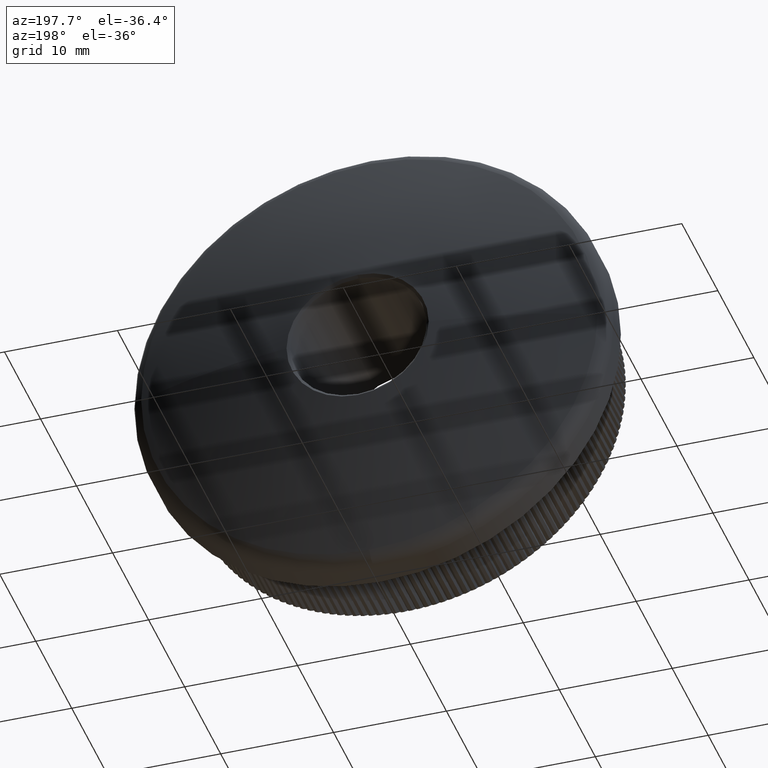
[diagram: clean part render]
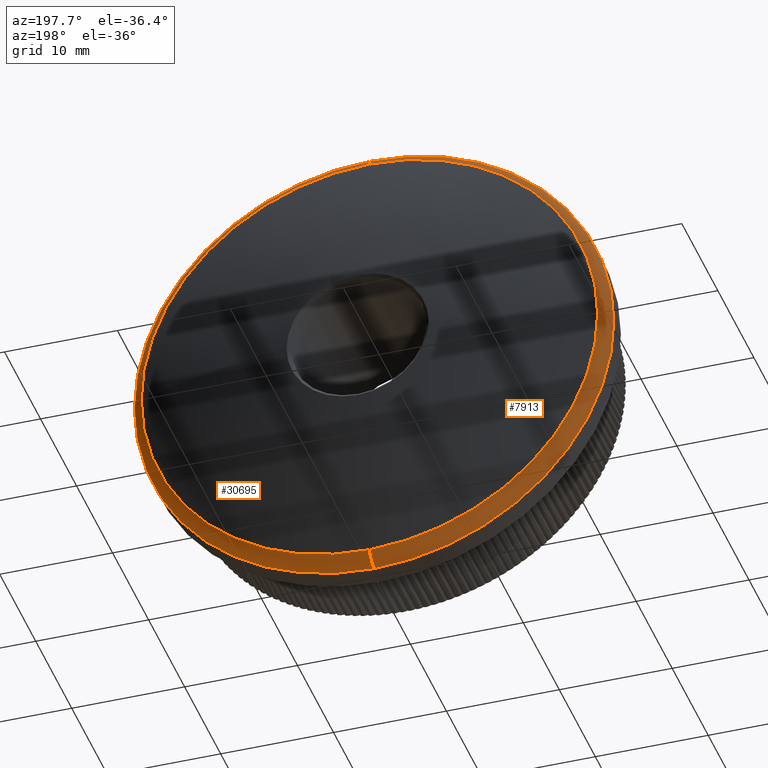
[diagram: same view with one multi-face feature highlighted, each face labeled with its STEP entity id]
A machine part, auxiliary view. The highlighted faces form ONE feature: a constant-radius fillet chain: 2 tangent blend faces with common blend radius 1.5 mm. The faces share edges in the B-rep.
Their STEP definitions:
[1] entity #7913 (Torus):
#6 = DIRECTION ( 'NONE',  ( 1.000000000000000000, 0.0000000000000000000, -1.224646799147353500E-016 ) ) ;
#136 = DIRECTION ( 'NONE',  ( -0.0000000000000000000, -1.000000000000000000, -0.0000000000000000000 ) ) ;
#665 = ORIENTED_EDGE ( 'NONE', *, *, #27645, .F. ) ;
#1501 = CIRCLE ( 'NONE', #29746, 1.500000000000001300 ) ;
#2232 = DIRECTION ( 'NONE',  ( 0.0000000000000000000, 1.000000000000000000, 0.0000000000000000000 ) ) ;
#2406 = VERTEX_POINT ( 'NONE', #12454 ) ;
#2564 = AXIS2_PLACEMENT_3D ( 'NONE', #7106, #2232, #31623 ) ;
#3249 = TOROIDAL_SURFACE ( 'NONE', #18318, 19.70000000000000300, 1.500000000000000000 ) ;
#3378 = VERTEX_POINT ( 'NONE', #6986 ) ;
#4003 = DIRECTION ( 'NONE',  ( 0.0000000000000000000, 1.000000000000000000, 0.0000000000000000000 ) ) ;
#4218 = CARTESIAN_POINT ( 'NONE',  ( 0.0000000000000000000, 9.966330070852492900, 0.0000000000000000000 ) ) ;
#4263 = AXIS2_PLACEMENT_3D ( 'NONE', #10129, #136, #17529 ) ;
#6280 = CARTESIAN_POINT ( 'NONE',  ( -20.22134791813689200, 11.37281375303809700, 2.476400900239134100E-015 ) ) ;
#6589 = DIRECTION ( 'NONE',  ( 0.0000000000000000000, 0.0000000000000000000, -1.000000000000000000 ) ) ;
#6986 = CARTESIAN_POINT ( 'NONE',  ( 2.596251214192389200E-015, 9.966330070852492900, 21.20000000000000300 ) ) ;
#7032 = CIRCLE ( 'NONE', #2564, 20.22134791813691000 ) ;
#7106 = CARTESIAN_POINT ( 'NONE',  ( 0.0000000000000000000, 11.37281375303810000, 0.0000000000000000000 ) ) ;
#7544 = VERTEX_POINT ( 'NONE', #13001 ) ;
#7700 = EDGE_CURVE ( 'NONE', #12483, #7544, #23152, .T. ) ;
#7913 = ADVANCED_FACE ( 'NONE', ( #9914 ), #3249, .T. ) ;
#8123 = CIRCLE ( 'NONE', #29635, 1.500000000000001300 ) ;
#9914 = FACE_OUTER_BOUND ( 'NONE', #25589, .T. ) ;
#10129 = CARTESIAN_POINT ( 'NONE',  ( 0.0000000000000000000, 9.966330070852492900, 0.0000000000000000000 ) ) ;
#11546 = CARTESIAN_POINT ( 'NONE',  ( 0.0000000000000000000, 11.37281375303810000, 0.0000000000000000000 ) ) ;
#12454 = CARTESIAN_POINT ( 'NONE',  ( 0.0000000000000000000, 9.966330070852492900, -21.20000000000000300 ) ) ;
#12483 = VERTEX_POINT ( 'NONE', #6280 ) ;
#13001 = CARTESIAN_POINT ( 'NONE',  ( 2.536326057215763400E-015, 11.37281375303810000, 20.22134791813691000 ) ) ;
#13052 = VERTEX_POINT ( 'NONE', #16336 ) ;
#13933 = EDGE_CURVE ( 'NONE', #7544, #3378, #8123, .T. ) ;
#14391 = DIRECTION ( 'NONE',  ( -0.0000000000000000000, -1.000000000000000000, -0.0000000000000000000 ) ) ;
#14702 = DIRECTION ( 'NONE',  ( -1.000000000000000000, 0.0000000000000000000, 0.0000000000000000000 ) ) ;
#15867 = ORIENTED_EDGE ( 'NONE', *, *, #18750, .T. ) ;
#16336 = CARTESIAN_POINT ( 'NONE',  ( 0.0000000000000000000, 11.37281375303810000, -20.22134791813691000 ) ) ;
#17265 = EDGE_CURVE ( 'NONE', #3378, #2406, #22070, .T. ) ;
#17529 = DIRECTION ( 'NONE',  ( 0.0000000000000000000, 0.0000000000000000000, -1.000000000000000000 ) ) ;
#18318 = AXIS2_PLACEMENT_3D ( 'NONE', #4218, #14391, #26649 ) ;
#18750 = EDGE_CURVE ( 'NONE', #13052, #2406, #1501, .T. ) ;
#18941 = AXIS2_PLACEMENT_3D ( 'NONE', #11546, #4003, #6589 ) ;
#19811 = DIRECTION ( 'NONE',  ( -1.224646799147352000E-016, 0.0000000000000000000, -1.000000000000000000 ) ) ;
#22070 = CIRCLE ( 'NONE', #4263, 21.20000000000000300 ) ;
#23152 = CIRCLE ( 'NONE', #18941, 20.22134791813691000 ) ;
#24467 = DIRECTION ( 'NONE',  ( 0.0000000000000000000, 0.0000000000000000000, 1.000000000000000000 ) ) ;
#25203 = ORIENTED_EDGE ( 'NONE', *, *, #7700, .F. ) ;
#25589 = EDGE_LOOP ( 'NONE', ( #28016, #25203, #665, #15867, #26447 ) ) ;
#26447 = ORIENTED_EDGE ( 'NONE', *, *, #17265, .F. ) ;
#26649 = DIRECTION ( 'NONE',  ( 0.0000000000000000000, 0.0000000000000000000, -1.000000000000000000 ) ) ;
#26955 = CARTESIAN_POINT ( 'NONE',  ( 0.0000000000000000000, 9.966330070852492900, -19.70000000000000300 ) ) ;
#27391 = CARTESIAN_POINT ( 'NONE',  ( 2.412554194320286400E-015, 9.966330070852492900, 19.70000000000000300 ) ) ;
#27645 = EDGE_CURVE ( 'NONE', #13052, #12483, #7032, .T. ) ;
#28016 = ORIENTED_EDGE ( 'NONE', *, *, #13933, .F. ) ;
#29635 = AXIS2_PLACEMENT_3D ( 'NONE', #27391, #6, #19811 ) ;
#29746 = AXIS2_PLACEMENT_3D ( 'NONE', #26955, #14702, #24467 ) ;
#31623 = DIRECTION ( 'NONE',  ( 0.0000000000000000000, 0.0000000000000000000, -1.000000000000000000 ) ) ;
[2] entity #30695 (Torus):
#6 = DIRECTION ( 'NONE',  ( 1.000000000000000000, 0.0000000000000000000, -1.224646799147353500E-016 ) ) ;
#164 = ORIENTED_EDGE ( 'NONE', *, *, #13933, .T. ) ;
#1501 = CIRCLE ( 'NONE', #29746, 1.500000000000001300 ) ;
#1520 = EDGE_CURVE ( 'NONE', #7544, #15467, #19964, .T. ) ;
#2248 = FACE_OUTER_BOUND ( 'NONE', #17893, .T. ) ;
#2406 = VERTEX_POINT ( 'NONE', #12454 ) ;
#2788 = ORIENTED_EDGE ( 'NONE', *, *, #17327, .F. ) ;
#3378 = VERTEX_POINT ( 'NONE', #6986 ) ;
#3494 = DIRECTION ( 'NONE',  ( 0.0000000000000000000, 0.0000000000000000000, -1.000000000000000000 ) ) ;
#6986 = CARTESIAN_POINT ( 'NONE',  ( 2.596251214192389200E-015, 9.966330070852492900, 21.20000000000000300 ) ) ;
#7544 = VERTEX_POINT ( 'NONE', #13001 ) ;
#8065 = EDGE_CURVE ( 'NONE', #15467, #13052, #27406, .T. ) ;
#8123 = CIRCLE ( 'NONE', #29635, 1.500000000000001300 ) ;
#9448 = AXIS2_PLACEMENT_3D ( 'NONE', #13728, #11118, #26007 ) ;
#10360 = CIRCLE ( 'NONE', #18273, 21.20000000000000300 ) ;
#10956 = CARTESIAN_POINT ( 'NONE',  ( 0.0000000000000000000, 9.966330070852492900, 0.0000000000000000000 ) ) ;
#11118 = DIRECTION ( 'NONE',  ( 0.0000000000000000000, 1.000000000000000000, 0.0000000000000000000 ) ) ;
#11240 = TOROIDAL_SURFACE ( 'NONE', #27838, 19.70000000000000300, 1.500000000000000000 ) ;
#12106 = ORIENTED_EDGE ( 'NONE', *, *, #1520, .F. ) ;
#12454 = CARTESIAN_POINT ( 'NONE',  ( 0.0000000000000000000, 9.966330070852492900, -21.20000000000000300 ) ) ;
#13001 = CARTESIAN_POINT ( 'NONE',  ( 2.536326057215763400E-015, 11.37281375303810000, 20.22134791813691000 ) ) ;
#13052 = VERTEX_POINT ( 'NONE', #16336 ) ;
#13057 = CARTESIAN_POINT ( 'NONE',  ( 0.0000000000000000000, 9.966330070852492900, 0.0000000000000000000 ) ) ;
#13728 = CARTESIAN_POINT ( 'NONE',  ( 0.0000000000000000000, 11.37281375303810000, 0.0000000000000000000 ) ) ;
#13933 = EDGE_CURVE ( 'NONE', #7544, #3378, #8123, .T. ) ;
#14702 = DIRECTION ( 'NONE',  ( -1.000000000000000000, 0.0000000000000000000, 0.0000000000000000000 ) ) ;
#15032 = ORIENTED_EDGE ( 'NONE', *, *, #8065, .F. ) ;
#15146 = DIRECTION ( 'NONE',  ( -0.0000000000000000000, -1.000000000000000000, -0.0000000000000000000 ) ) ;
#15238 = DIRECTION ( 'NONE',  ( 0.0000000000000000000, 1.000000000000000000, 0.0000000000000000000 ) ) ;
#15467 = VERTEX_POINT ( 'NONE', #26184 ) ;
#15655 = CARTESIAN_POINT ( 'NONE',  ( 0.0000000000000000000, 11.37281375303810000, 0.0000000000000000000 ) ) ;
#16336 = CARTESIAN_POINT ( 'NONE',  ( 0.0000000000000000000, 11.37281375303810000, -20.22134791813691000 ) ) ;
#17327 = EDGE_CURVE ( 'NONE', #2406, #3378, #10360, .T. ) ;
#17893 = EDGE_LOOP ( 'NONE', ( #12106, #164, #2788, #23714, #15032 ) ) ;
#18273 = AXIS2_PLACEMENT_3D ( 'NONE', #13057, #15146, #25110 ) ;
#18450 = DIRECTION ( 'NONE',  ( -0.0000000000000000000, -1.000000000000000000, -0.0000000000000000000 ) ) ;
#18750 = EDGE_CURVE ( 'NONE', #13052, #2406, #1501, .T. ) ;
#19811 = DIRECTION ( 'NONE',  ( -1.224646799147352000E-016, 0.0000000000000000000, -1.000000000000000000 ) ) ;
#19964 = CIRCLE ( 'NONE', #9448, 20.22134791813691000 ) ;
#20007 = AXIS2_PLACEMENT_3D ( 'NONE', #15655, #15238, #25204 ) ;
#23714 = ORIENTED_EDGE ( 'NONE', *, *, #18750, .F. ) ;
#24467 = DIRECTION ( 'NONE',  ( 0.0000000000000000000, 0.0000000000000000000, 1.000000000000000000 ) ) ;
#25110 = DIRECTION ( 'NONE',  ( 0.0000000000000000000, 0.0000000000000000000, -1.000000000000000000 ) ) ;
#25204 = DIRECTION ( 'NONE',  ( 0.0000000000000000000, 0.0000000000000000000, -1.000000000000000000 ) ) ;
#26007 = DIRECTION ( 'NONE',  ( 0.0000000000000000000, 0.0000000000000000000, -1.000000000000000000 ) ) ;
#26184 = CARTESIAN_POINT ( 'NONE',  ( 20.22134791813689200, 11.37281375303809700, 0.0000000000000000000 ) ) ;
#26955 = CARTESIAN_POINT ( 'NONE',  ( 0.0000000000000000000, 9.966330070852492900, -19.70000000000000300 ) ) ;
#27391 = CARTESIAN_POINT ( 'NONE',  ( 2.412554194320286400E-015, 9.966330070852492900, 19.70000000000000300 ) ) ;
#27406 = CIRCLE ( 'NONE', #20007, 20.22134791813691000 ) ;
#27838 = AXIS2_PLACEMENT_3D ( 'NONE', #10956, #18450, #3494 ) ;
#29635 = AXIS2_PLACEMENT_3D ( 'NONE', #27391, #6, #19811 ) ;
#29746 = AXIS2_PLACEMENT_3D ( 'NONE', #26955, #14702, #24467 ) ;
#30695 = ADVANCED_FACE ( 'NONE', ( #2248 ), #11240, .T. ) ;